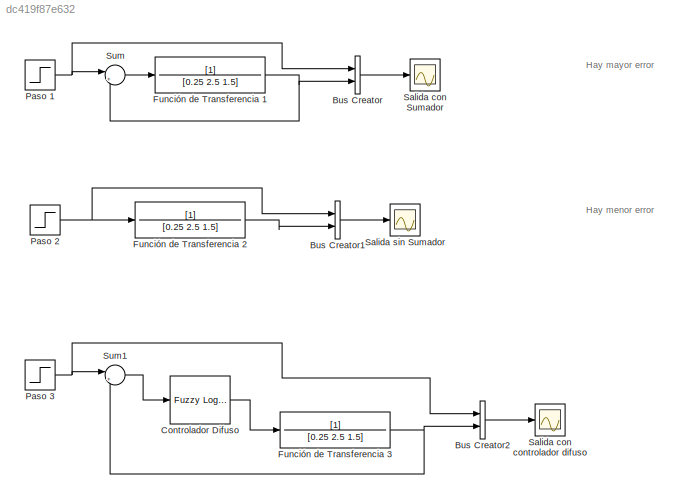
MODEL slx_dc419f87e632
KIND model
CONFIG AbsTol = auto
CONFIG FixedStep = auto
CONFIG MaxStep = auto
CONFIG MinStep = auto
CONFIG RelTol = 1e-3
CONFIG SampleTimeConstraint = Unconstrained
CONFIG Solver = ode45
CONFIG SolverMode = Auto
CONFIG SolverName = ode45
CONFIG StartTime = 0.0
CONFIG StopTime = 10.0
BLOCK [BusCreator] Bus Creator
  DisplayOption = bar
  Inputs = 2
  Ports = [2, 1]
BLOCK [BusCreator] Bus Creator1
  DisplayOption = bar
  Inputs = 2
  Ports = [2, 1]
BLOCK [BusCreator] Bus Creator2
  DisplayOption = bar
  Inputs = 2
  Ports = [2, 1]
BLOCK [Reference] Controlador Difuso  REF=fuzblock/Fuzzy Logic   (lib defined in mdl_858b3b3e7478)
Controller
  Ports = [1, 1]
  SourceBlock = fuzblock/Fuzzy Logic \nController
  SourceType = FIS
  fis = controlador
BLOCK [TransferFcn] Función de Transferencia 1
  Denominator = [0.25 2.5 1.5]
BLOCK [TransferFcn] Función de Transferencia 2
  Denominator = [0.25 2.5 1.5]
BLOCK [TransferFcn] Función de Transferencia 3
  Denominator = [0.25 2.5 1.5]
BLOCK [Step] Paso 1
  SampleTime = 0
BLOCK [Step] Paso 2
  SampleTime = 0
BLOCK [Step] Paso 3
  SampleTime = 0
BLOCK [Scope] Salida con Sumador
  Floating = off
  NumInputPorts = 1
  Ports = [1]
  TimeRange = 10
  YMax = 1
  YMin = 0
BLOCK [Scope] Salida con controlador difuso
  Floating = off
  NumInputPorts = 1
  Ports = [1]
  SaveName = ScopeData2
  TimeRange = 10
  YMax = 12
  YMin = 0
BLOCK [Scope] Salida sin Sumador
  Floating = off
  NumInputPorts = 1
  Ports = [1]
  SaveName = ScopeData1
BLOCK [Sum] Sum
  IconShape = round
  InputSameDT = off
  Inputs = |+-
  OutDataTypeStr = Inherit: Inherit via internal rule
  Ports = [2, 1]
  SaturateOnIntegerOverflow = off
BLOCK [Sum] Sum1
  IconShape = round
  InputSameDT = off
  Inputs = |+-
  OutDataTypeStr = Inherit: Inherit via internal rule
  Ports = [2, 1]
  SaturateOnIntegerOverflow = off
ANNOTATION (root): Hay mayor error
ANNOTATION (root): Hay menor error
LINE Bus Creator1:1 -> Salida sin Sumador:1
LINE Bus Creator2:1 -> Salida con controlador difuso:1
LINE Bus Creator:1 -> Salida con Sumador:1
LINE Controlador Difuso:1 -> Función de Transferencia 3:1
NET Función de Transferencia 1:1 -> Bus Creator:2, Sum:2
LINE Función de Transferencia 2:1 -> Bus Creator1:2
NET Función de Transferencia 3:1 -> Bus Creator2:2, Sum1:2
NET Paso 1:1 -> Bus Creator:1, Sum:1
NET Paso 2:1 -> Bus Creator1:1, Función de Transferencia 2:1
NET Paso 3:1 -> Bus Creator2:1, Sum1:1
LINE Sum1:1 -> Controlador Difuso:1
LINE Sum:1 -> Función de Transferencia 1:1
note: NET lines group one-source signal fan-out (src -> all destinations, sorted); 1:1 wires keep LINE
